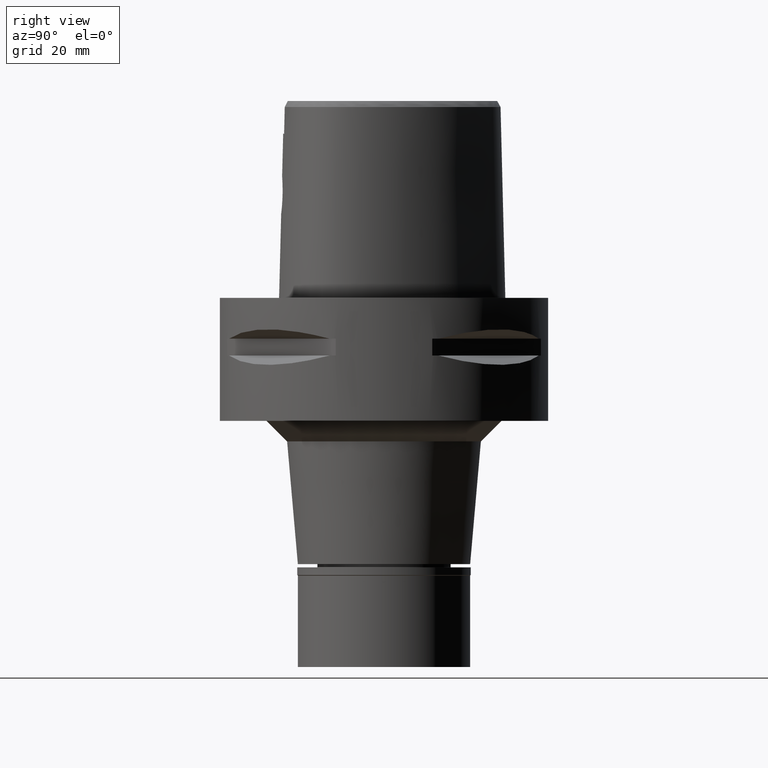
[diagram: clean part render]
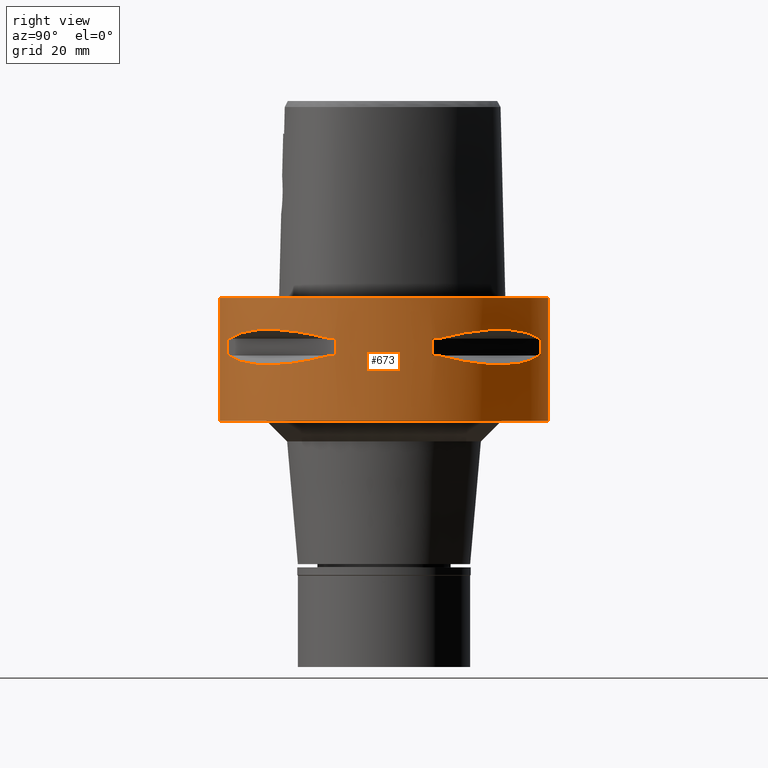
[diagram: same view with one face highlighted and labeled with its STEP entity id]
A machine part, right view. The second image highlights one B-rep face of the part: STEP entity #673.
In plain terms, the highlighted cylindrical surface (partial cylindrical patch) has radius 40 mm, axis along (0, 0, -1).
Its self-contained STEP definition (entity closure, byte-faithful):
#31 = ORIENTED_EDGE ( 'NONE', *, *, #4713, .T. ) ;
#59 = DIRECTION ( 'NONE',  ( 0.9436555409818374596, 0.3309293277639132058, 0.0000000000000000000 ) ) ;
#70 = CARTESIAN_POINT ( 'NONE',  ( 23.95303639242650817, -32.16767032367170742, -16.14729882780797254 ) ) ;
#94 = CARTESIAN_POINT ( 'NONE',  ( 22.55421454656422853, 33.03835700910543949, -15.93168855142912044 ) ) ;
#95 = CARTESIAN_POINT ( 'NONE',  ( 33.71529052282352978, -21.52391145898905833, -15.78742602700000930 ) ) ;
#142 = CARTESIAN_POINT ( 'NONE',  ( 21.40429668490344994, -33.79139713908569576, -15.76966389594736029 ) ) ;
#197 = EDGE_CURVE ( 'NONE', #3501, #4285, #1095, .T. ) ;
#198 = CARTESIAN_POINT ( 'NONE',  ( 18.89342208871622120, 35.39137327286633194, -15.39779115588365599 ) ) ;
#204 = DIRECTION ( 'NONE',  ( 0.0000000000000000000, 1.000000000000000000, 0.0000000000000000000 ) ) ;
#209 = CARTESIAN_POINT ( 'NONE',  ( 0.0000000000000000000, 1.275163479612000028E-14, -9.950000000000001066 ) ) ;
#232 = DIRECTION ( 'NONE',  ( 0.9558028356769561196, -0.2940084000702865574, 0.0000000000000000000 ) ) ;
#247 = EDGE_CURVE ( 'NONE', #3501, #4029, #2571, .T. ) ;
#255 = ORIENTED_EDGE ( 'NONE', *, *, #3157, .T. ) ;
#267 = CARTESIAN_POINT ( 'NONE',  ( 23.88364259926272481, 32.22570670466008380, -7.859869859733158215 ) ) ;
#277 = DIRECTION ( 'NONE',  ( 0.0000000000000000000, -1.000000000000000000, 0.0000000000000000000 ) ) ;
#283 = ORIENTED_EDGE ( 'NONE', *, *, #1837, .F. ) ;
#333 = DIRECTION ( 'NONE',  ( 0.0000000000000000000, 0.0000000000000000000, 1.000000000000000000 ) ) ;
#361 = EDGE_CURVE ( 'NONE', #4268, #2239, #3791, .T. ) ;
#363 = CIRCLE ( 'NONE', #2567, 40.00000000000000000 ) ;
#392 = CARTESIAN_POINT ( 'NONE',  ( 36.35358138589327126, 16.81132763100201544, -14.94059947015120926 ) ) ;
#405 = DIRECTION ( 'NONE',  ( 0.0000000000000000000, 0.0000000000000000000, 1.000000000000000000 ) ) ;
#413 = VECTOR ( 'NONE', #2186, 1000.000000000000000 ) ;
#438 = CARTESIAN_POINT ( 'NONE',  ( 33.79139713908592313, 21.40429668490280335, -15.76966389594719864 ) ) ;
#444 = CARTESIAN_POINT ( 'NONE',  ( 38.23211342708000160, 11.76033600280999991, -9.950000000000001066 ) ) ;
#465 = VERTEX_POINT ( 'NONE', #1439 ) ;
#500 = AXIS2_PLACEMENT_3D ( 'NONE', #3363, #1425, #4500 ) ;
#504 = VERTEX_POINT ( 'NONE', #4286 ) ;
#519 = CARTESIAN_POINT ( 'NONE',  ( 16.81132763102019467, -36.35358138588690480, -14.94059947015603029 ) ) ;
#548 = CARTESIAN_POINT ( 'NONE',  ( 0.0000000000000000000, -40.00000000000000000, 0.0000000000000000000 ) ) ;
#562 = CARTESIAN_POINT ( 'NONE',  ( 21.20128033779976207, -33.91944728533264453, -15.73905907260502168 ) ) ;
#574 = EDGE_LOOP ( 'NONE', ( #990, #2090, #1836, #4426 ) ) ;
#606 = CARTESIAN_POINT ( 'NONE',  ( 37.74622163926999718, -13.23717311056000057, -9.950000000002001244 ) ) ;
#613 = CARTESIAN_POINT ( 'NONE',  ( 0.0000000000000000000, 40.00000000000000000, -30.00000000000000000 ) ) ;
#618 = B_SPLINE_CURVE_WITH_KNOTS ( 'NONE', 3,
 ( #1413, #1899, #4998, #3080, #1849, #2263, #2565, #4614, #3738, #4129 ),
 .UNSPECIFIED., .F., .F.,
 ( 4, 2, 2, 2, 4 ),
 ( 0.0000000000000000000, 0.2500000000000000000, 0.5000000000000000000, 0.7500000000000000000, 1.000000000000000000 ),
 .UNSPECIFIED. ) ;
#619 = DIRECTION ( 'NONE',  ( 0.2940084000702865574, 0.9558028356769561196, 0.0000000000000000000 ) ) ;
#661 = CARTESIAN_POINT ( 'NONE',  ( 0.0000000000000000000, 1.275163479612000028E-14, -30.00000000000000000 ) ) ;
#673 = ADVANCED_FACE ( 'NONE', ( #3693, #4547, #4880 ), #2956, .T. ) ;
#686 = CARTESIAN_POINT ( 'NONE',  ( 38.23211342708000160, -11.76033600280999991, -9.950000000000001066 ) ) ;
#716 = VERTEX_POINT ( 'NONE', #1269 ) ;
#725 = CARTESIAN_POINT ( 'NONE',  ( 0.0000000000000000000, 1.275163479612000028E-14, -9.950000000000001066 ) ) ;
#741 = CIRCLE ( 'NONE', #2714, 39.99999999999999289 ) ;
#757 = VERTEX_POINT ( 'NONE', #4794 ) ;
#776 = CARTESIAN_POINT ( 'NONE',  ( 30.34851826271004782, 26.21995747454793602, -16.33009976521915263 ) ) ;
#780 = CARTESIAN_POINT ( 'NONE',  ( 35.41596287858687475, 18.83173199168491507, -8.619939612229350345 ) ) ;
#793 = EDGE_CURVE ( 'NONE', #3249, #3082, #3211, .T. ) ;
#807 = B_SPLINE_CURVE_WITH_KNOTS ( 'NONE', 3,
 ( #1065, #1887, #780, #3037, #4243, #3781, #267, #3496, #1839, #3893 ),
 .UNSPECIFIED., .F., .F.,
 ( 4, 2, 2, 2, 4 ),
 ( 0.0000000000000000000, 0.2499999999999997780, 0.4999999999999995559, 0.7499999999999997780, 1.000000000000000000 ),
 .UNSPECIFIED. ) ;
#845 = CARTESIAN_POINT ( 'NONE',  ( 37.74622163926999718, 13.23717311056000057, -14.05000000000000071 ) ) ;
#846 = DIRECTION ( 'NONE',  ( 0.0000000000000000000, 0.0000000000000000000, 1.000000000000000000 ) ) ;
#926 = CARTESIAN_POINT ( 'NONE',  ( 20.34261333235769342, -34.44518065739997326, -15.60313948594185263 ) ) ;
#938 = AXIS2_PLACEMENT_3D ( 'NONE', #4183, #4520, #4135 ) ;
#955 = EDGE_CURVE ( 'NONE', #4606, #2755, #4784, .T. ) ;
#990 = ORIENTED_EDGE ( 'NONE', *, *, #1052, .T. ) ;
#1020 = AXIS2_PLACEMENT_3D ( 'NONE', #2168, #3720, #204 ) ;
#1052 = EDGE_CURVE ( 'NONE', #1465, #3949, #1107, .T. ) ;
#1065 = CARTESIAN_POINT ( 'NONE',  ( 37.74622163926999718, 13.23717311056000057, -9.950000000002001244 ) ) ;
#1095 = LINE ( 'NONE', #1915, #4380 ) ;
#1107 = CIRCLE ( 'NONE', #1020, 40.00000000000000000 ) ;
#1142 = ORIENTED_EDGE ( 'NONE', *, *, #3545, .T. ) ;
#1173 = CARTESIAN_POINT ( 'NONE',  ( 33.91944728533342612, 21.20128033779756294, -15.73905907260444614 ) ) ;
#1243 = CARTESIAN_POINT ( 'NONE',  ( 0.0000000000000000000, -40.00000000000000000, 0.0000000000000000000 ) ) ;
#1266 = CARTESIAN_POINT ( 'NONE',  ( 26.21995747455854087, -30.34851826270995545, -16.33009976522343365 ) ) ;
#1268 = CARTESIAN_POINT ( 'NONE',  ( 21.75464223249177920, 33.56701934068340165, -15.82109001420614547 ) ) ;
#1269 = CARTESIAN_POINT ( 'NONE',  ( 11.76033600280999991, 38.23211342708000160, -9.950000000000001066 ) ) ;
#1291 = CARTESIAN_POINT ( 'NONE',  ( 20.91613153242540335, -34.09685321779713263, -15.69507322892989265 ) ) ;
#1335 = ORIENTED_EDGE ( 'NONE', *, *, #4802, .T. ) ;
#1396 = CARTESIAN_POINT ( 'NONE',  ( 0.0000000000000000000, 1.275163479612000028E-14, -14.05000000000000071 ) ) ;
#1407 = AXIS2_PLACEMENT_3D ( 'NONE', #209, #2196, #3750 ) ;
#1413 = CARTESIAN_POINT ( 'NONE',  ( 13.23717311056000057, -37.74622163926999718, -9.950000000002001244 ) ) ;
#1425 = DIRECTION ( 'NONE',  ( 0.0000000000000000000, 0.0000000000000000000, -1.000000000000000000 ) ) ;
#1438 = LINE ( 'NONE', #1462, #3793 ) ;
#1439 = CARTESIAN_POINT ( 'NONE',  ( 0.0000000000000000000, -40.00000000000000000, -30.00000000000000000 ) ) ;
#1461 = CARTESIAN_POINT ( 'NONE',  ( 13.23717311056000057, -37.74622163926999718, -14.05000000000000071 ) ) ;
#1462 = CARTESIAN_POINT ( 'NONE',  ( 11.76033600280999991, -38.23211342708000160, -9.950000000000001066 ) ) ;
#1465 = VERTEX_POINT ( 'NONE', #5086 ) ;
#1500 = CARTESIAN_POINT ( 'NONE',  ( 37.74622163926999718, -13.23717311056000057, -14.05000000000000071 ) ) ;
#1522 = EDGE_LOOP ( 'NONE', ( #1142, #4567, #2166, #4729, #255, #4090, #4303, #4167 ) ) ;
#1533 = DIRECTION ( 'NONE',  ( 0.0000000000000000000, 0.0000000000000000000, 1.000000000000000000 ) ) ;
#1561 = EDGE_LOOP ( 'NONE', ( #4053, #3043, #1335, #2309, #2113, #283, #31, #4673 ) ) ;
#1564 = AXIS2_PLACEMENT_3D ( 'NONE', #725, #3393, #1916 ) ;
#1573 = CARTESIAN_POINT ( 'NONE',  ( 21.50560509406271237, 33.72697758561020009, -15.78472370821742921 ) ) ;
#1578 = VERTEX_POINT ( 'NONE', #3185 ) ;
#1645 = CIRCLE ( 'NONE', #3195, 39.99999999999997868 ) ;
#1651 = CARTESIAN_POINT ( 'NONE',  ( 32.30995221951170038, -23.60097336452853867, -16.06165603927371066 ) ) ;
#1652 = CARTESIAN_POINT ( 'NONE',  ( 23.60097336452848182, 32.30995221951866370, -16.06165603927653507 ) ) ;
#1662 = B_SPLINE_CURVE_WITH_KNOTS ( 'NONE', 3,
 ( #845, #4342, #392, #3511, #4676, #2399, #1173, #3960, #438, #2797, #3210, #2427, #776, #3988, #3587, #1652, #94, #3914, #1268, #2351, #2448, #4393, #1573, #198, #1822, #1776 ),
 .UNSPECIFIED., .F., .F.,
 ( 4, 1, 1, 1, 1, 1, 1, 2, 2, 2, 1, 1, 1, 1, 1, 1, 2, 2, 4 ),
 ( 0.0000000000000000000, 0.1249999999999915345, 0.1874999999999875377, 0.2187499999999857891, 0.2343749999999851508, 0.2421874999999849842, 0.2460937499999846234, 0.2480468749999845957, 0.2499999999999845679, 0.5000000000000065503, 0.6250000000000176525, 0.6875000000000233147, 0.7187500000000262013, 0.7343750000000277556, 0.7421875000000283107, 0.7460937500000288658, 0.7480468750000289768, 0.7500000000000289768, 1.000000000000000000 ),
 .UNSPECIFIED. ) ;
#1679 = CARTESIAN_POINT ( 'NONE',  ( 19.18269457494637464, -35.11589783530138931, -15.40342377741468205 ) ) ;
#1724 = VECTOR ( 'NONE', #4040, 1000.000000000000000 ) ;
#1752 = CARTESIAN_POINT ( 'NONE',  ( 36.72682052668967856, -16.14402792114121610, -14.82054974553782500 ) ) ;
#1770 = EDGE_CURVE ( 'NONE', #465, #4216, #363, .T. ) ;
#1771 = EDGE_CURVE ( 'NONE', #1578, #2514, #618, .T. ) ;
#1776 = CARTESIAN_POINT ( 'NONE',  ( 13.23717311056000057, 37.74622163926999718, -14.05000000000000071 ) ) ;
#1822 = CARTESIAN_POINT ( 'NONE',  ( 16.14402792110257678, 36.72682052670324993, -14.82054974552758786 ) ) ;
#1836 = ORIENTED_EDGE ( 'NONE', *, *, #1770, .T. ) ;
#1837 = EDGE_CURVE ( 'NONE', #504, #3698, #1438, .T. ) ;
#1839 = CARTESIAN_POINT ( 'NONE',  ( 16.10442380453151401, 36.74070924255632775, -9.189948522856571600 ) ) ;
#1849 = CARTESIAN_POINT ( 'NONE',  ( 26.20795918965211158, -30.36058330527167115, -7.669882118573494445 ) ) ;
#1860 = CARTESIAN_POINT ( 'NONE',  ( 14.69039122919157769, -37.23659447744481099, -14.43521939501259155 ) ) ;
#1887 = CARTESIAN_POINT ( 'NONE',  ( 36.74073341983645236, 16.10435486224558943, -9.189966798093664124 ) ) ;
#1899 = CARTESIAN_POINT ( 'NONE',  ( 16.10435486228985980, -36.74073341982089147, -9.189966798081966814 ) ) ;
#1915 = CARTESIAN_POINT ( 'NONE',  ( 38.23211342708000160, 11.76033600280999991, -9.950000000000001066 ) ) ;
#1916 = DIRECTION ( 'NONE',  ( 0.9436555409818374596, -0.3309293277639132058, 0.0000000000000000000 ) ) ;
#1979 = CIRCLE ( 'NONE', #1407, 39.99999999999999289 ) ;
#2049 = CARTESIAN_POINT ( 'NONE',  ( 13.23717311056000057, 37.74622163926999718, -14.05000000000000071 ) ) ;
#2054 = CARTESIAN_POINT ( 'NONE',  ( 21.46607685731500936, -33.75216276490078116, -15.77886817953053722 ) ) ;
#2090 = ORIENTED_EDGE ( 'NONE', *, *, #3798, .T. ) ;
#2113 = ORIENTED_EDGE ( 'NONE', *, *, #4805, .T. ) ;
#2129 = CARTESIAN_POINT ( 'NONE',  ( 35.39137327285275347, -18.89342208875486051, -15.39779115589389313 ) ) ;
#2136 = LINE ( 'NONE', #548, #1724 ) ;
#2166 = ORIENTED_EDGE ( 'NONE', *, *, #955, .T. ) ;
#2168 = CARTESIAN_POINT ( 'NONE',  ( 0.0000000000000000000, 1.275163479612000028E-14, 0.0000000000000000000 ) ) ;
#2186 = DIRECTION ( 'NONE',  ( 0.0000000000000000000, 0.0000000000000000000, -1.000000000000000000 ) ) ;
#2196 = DIRECTION ( 'NONE',  ( 0.0000000000000000000, 0.0000000000000000000, 1.000000000000000000 ) ) ;
#2239 = VERTEX_POINT ( 'NONE', #1500 ) ;
#2262 = CARTESIAN_POINT ( 'NONE',  ( 38.23211342708000160, 11.76033600280999991, -14.05000000000000071 ) ) ;
#2263 = CARTESIAN_POINT ( 'NONE',  ( 30.36058330527161075, -26.20795918965218618, -7.669863843587146235 ) ) ;
#2303 = AXIS2_PLACEMENT_3D ( 'NONE', #4733, #3578, #59 ) ;
#2309 = ORIENTED_EDGE ( 'NONE', *, *, #361, .F. ) ;
#2314 = CIRCLE ( 'NONE', #500, 39.99999999999997868 ) ;
#2351 = CARTESIAN_POINT ( 'NONE',  ( 21.62017158009643936, 33.65365962422873736, -15.80156334789086969 ) ) ;
#2380 = CARTESIAN_POINT ( 'NONE',  ( 11.76033600280999991, -38.23211342708000160, -14.05000000000000071 ) ) ;
#2399 = CARTESIAN_POINT ( 'NONE',  ( 34.09685321779859635, 20.91613153242112588, -15.69507322892875756 ) ) ;
#2424 = VECTOR ( 'NONE', #846, 1000.000000000000000 ) ;
#2427 = CARTESIAN_POINT ( 'NONE',  ( 32.16767032370579216, 23.95303639238192162, -16.14729882780368442 ) ) ;
#2428 = CARTESIAN_POINT ( 'NONE',  ( 38.23211342708000160, -11.76033600280999991, -14.05000000000000071 ) ) ;
#2448 = CARTESIAN_POINT ( 'NONE',  ( 21.56243030661629945, 33.69065616467204194, -15.79309434609245422 ) ) ;
#2452 = DIRECTION ( 'NONE',  ( 0.3309293277639132058, 0.9436555409818374596, 0.0000000000000000000 ) ) ;
#2455 = CARTESIAN_POINT ( 'NONE',  ( 11.76033600280999991, 38.23211342708000160, -14.05000000000000071 ) ) ;
#2471 = CARTESIAN_POINT ( 'NONE',  ( 33.69065616467173641, -21.56243030661631366, -15.79309434609233165 ) ) ;
#2514 = VERTEX_POINT ( 'NONE', #606 ) ;
#2565 = CARTESIAN_POINT ( 'NONE',  ( 32.22570670470193477, -23.88364259920623667, -7.859869859750699739 ) ) ;
#2567 = AXIS2_PLACEMENT_3D ( 'NONE', #661, #333, #277 ) ;
#2571 = CIRCLE ( 'NONE', #3794, 39.99999999999999289 ) ;
#2577 = AXIS2_PLACEMENT_3D ( 'NONE', #1396, #4977, #619 ) ;
#2714 = AXIS2_PLACEMENT_3D ( 'NONE', #4906, #2935, #232 ) ;
#2755 = VERTEX_POINT ( 'NONE', #2049 ) ;
#2797 = CARTESIAN_POINT ( 'NONE',  ( 33.76566745675005166, 21.44484052678286190, -15.77571175125576808 ) ) ;
#2849 = CARTESIAN_POINT ( 'NONE',  ( 21.44484052678318164, -33.76566745674993797, -15.77571175125586045 ) ) ;
#2863 = CIRCLE ( 'NONE', #2303, 39.99999999999997868 ) ;
#2935 = DIRECTION ( 'NONE',  ( 0.0000000000000000000, 0.0000000000000000000, -1.000000000000000000 ) ) ;
#2956 = CYLINDRICAL_SURFACE ( 'NONE', #938, 40.00000000000000000 ) ;
#3037 = CARTESIAN_POINT ( 'NONE',  ( 32.22577213862145840, 23.88355431031446230, -7.859897272588790784 ) ) ;
#3043 = ORIENTED_EDGE ( 'NONE', *, *, #793, .F. ) ;
#3080 = CARTESIAN_POINT ( 'NONE',  ( 23.88355431037091137, -32.22577213857957901, -7.859897272571249260 ) ) ;
#3082 = VERTEX_POINT ( 'NONE', #686 ) ;
#3091 = EDGE_CURVE ( 'NONE', #4606, #716, #3924, .T. ) ;
#3096 = DIRECTION ( 'NONE',  ( 0.0000000000000000000, 0.0000000000000000000, -1.000000000000000000 ) ) ;
#3157 = EDGE_CURVE ( 'NONE', #757, #4285, #2863, .T. ) ;
#3185 = CARTESIAN_POINT ( 'NONE',  ( 13.23717311056000057, -37.74622163926999718, -9.950000000002001244 ) ) ;
#3195 = AXIS2_PLACEMENT_3D ( 'NONE', #3619, #4350, #2452 ) ;
#3208 = CARTESIAN_POINT ( 'NONE',  ( 33.03835700910137518, -22.55421454656427116, -15.93168855142748974 ) ) ;
#3210 = CARTESIAN_POINT ( 'NONE',  ( 33.75216276490053247, 21.46607685731535753, -15.77886817953057630 ) ) ;
#3211 = LINE ( 'NONE', #2428, #2424 ) ;
#3249 = VERTEX_POINT ( 'NONE', #4962 ) ;
#3253 = CARTESIAN_POINT ( 'NONE',  ( 33.39247868354687654, -22.02254759438256215, -15.85920599531173281 ) ) ;
#3363 = CARTESIAN_POINT ( 'NONE',  ( 0.0000000000000000000, 1.275163479612000028E-14, -14.05000000000000071 ) ) ;
#3393 = DIRECTION ( 'NONE',  ( 0.0000000000000000000, 0.0000000000000000000, 1.000000000000000000 ) ) ;
#3399 = LINE ( 'NONE', #4198, #413 ) ;
#3413 = EDGE_CURVE ( 'NONE', #4029, #3838, #807, .T. ) ;
#3414 = EDGE_CURVE ( 'NONE', #2514, #3082, #3676, .T. ) ;
#3442 = CARTESIAN_POINT ( 'NONE',  ( 0.0000000000000000000, 1.275163479612000028E-14, -9.950000000000001066 ) ) ;
#3496 = CARTESIAN_POINT ( 'NONE',  ( 18.83182902082666743, 35.41591128510520292, -8.619912199373716888 ) ) ;
#3501 = VERTEX_POINT ( 'NONE', #444 ) ;
#3511 = CARTESIAN_POINT ( 'NONE',  ( 35.11589783530614284, 19.18269457493275354, -15.40342377741106539 ) ) ;
#3530 = CARTESIAN_POINT ( 'NONE',  ( 11.76033600280999991, 38.23211342708000160, -14.05000000000000071 ) ) ;
#3545 = EDGE_CURVE ( 'NONE', #3838, #716, #1645, .T. ) ;
#3578 = DIRECTION ( 'NONE',  ( 0.0000000000000000000, 0.0000000000000000000, -1.000000000000000000 ) ) ;
#3586 = CARTESIAN_POINT ( 'NONE',  ( 33.72697758561031378, -21.50560509406240328, -15.78472370821734216 ) ) ;
#3587 = CARTESIAN_POINT ( 'NONE',  ( 25.62819065486032599, 30.77249687754699181, -16.26160051742884249 ) ) ;
#3619 = CARTESIAN_POINT ( 'NONE',  ( 0.0000000000000000000, 1.275163479612000028E-14, -9.950000000000001066 ) ) ;
#3676 = CIRCLE ( 'NONE', #1564, 39.99999999999997868 ) ;
#3685 = CARTESIAN_POINT ( 'NONE',  ( 30.77249687753770857, -25.62819065486041481, -16.26160051742509793 ) ) ;
#3693 = FACE_OUTER_BOUND ( 'NONE', #574, .T. ) ;
#3698 = VERTEX_POINT ( 'NONE', #2380 ) ;
#3720 = DIRECTION ( 'NONE',  ( 0.0000000000000000000, 0.0000000000000000000, -1.000000000000000000 ) ) ;
#3738 = CARTESIAN_POINT ( 'NONE',  ( 36.74070924257181758, -16.10442380448734312, -9.189948522868267133 ) ) ;
#3750 = DIRECTION ( 'NONE',  ( 0.2940084000702865574, -0.9558028356769561196, 0.0000000000000000000 ) ) ;
#3781 = CARTESIAN_POINT ( 'NONE',  ( 26.20795918968520866, 30.36058330523860960, -7.669863843575448925 ) ) ;
#3791 = B_SPLINE_CURVE_WITH_KNOTS ( 'NONE', 3,
 ( #3812, #1860, #519, #1679, #926, #1291, #562, #4057, #142, #2849, #2054, #70, #1266, #4874, #3685, #1651, #3208, #3253, #4104, #4414, #2471, #95, #3586, #2129, #1752, #4035 ),
 .UNSPECIFIED., .F., .F.,
 ( 4, 1, 1, 1, 1, 1, 1, 2, 2, 2, 1, 1, 1, 1, 1, 1, 2, 2, 4 ),
 ( 0.0000000000000000000, 0.1249999999999973355, 0.1874999999999962530, 0.2187499999999958367, 0.2343749999999957534, 0.2421874999999955591, 0.2460937499999953648, 0.2480468749999952260, 0.2499999999999951150, 0.4999999999999993339, 0.6250000000000015543, 0.6875000000000027756, 0.7187500000000034417, 0.7343750000000038858, 0.7421875000000039968, 0.7460937500000038858, 0.7480468750000038858, 0.7500000000000039968, 1.000000000000000000 ),
 .UNSPECIFIED. ) ;
#3793 = VECTOR ( 'NONE', #4585, 1000.000000000000000 ) ;
#3794 = AXIS2_PLACEMENT_3D ( 'NONE', #3442, #1533, #5015 ) ;
#3798 = EDGE_CURVE ( 'NONE', #3949, #465, #2136, .T. ) ;
#3812 = CARTESIAN_POINT ( 'NONE',  ( 13.23717311056000057, -37.74622163926999718, -14.05000000000000071 ) ) ;
#3838 = VERTEX_POINT ( 'NONE', #4062 ) ;
#3893 = CARTESIAN_POINT ( 'NONE',  ( 13.23717311056000057, 37.74622163926999718, -9.950000000002001244 ) ) ;
#3914 = CARTESIAN_POINT ( 'NONE',  ( 22.02254759438254084, 33.39247868354903659, -15.85920599531261210 ) ) ;
#3924 = LINE ( 'NONE', #3530, #4506 ) ;
#3949 = VERTEX_POINT ( 'NONE', #1243 ) ;
#3960 = CARTESIAN_POINT ( 'NONE',  ( 33.82993376593504564, 21.34345216682095625, -15.76055673748757613 ) ) ;
#3988 = CARTESIAN_POINT ( 'NONE',  ( 27.25214773983623928, 29.31642813391731295, -16.33014064577227487 ) ) ;
#4029 = VERTEX_POINT ( 'NONE', #4722 ) ;
#4035 = CARTESIAN_POINT ( 'NONE',  ( 37.74622163926999718, -13.23717311056000057, -14.05000000000000071 ) ) ;
#4040 = DIRECTION ( 'NONE',  ( 0.0000000000000000000, 0.0000000000000000000, -1.000000000000000000 ) ) ;
#4053 = ORIENTED_EDGE ( 'NONE', *, *, #3414, .T. ) ;
#4057 = CARTESIAN_POINT ( 'NONE',  ( 21.34345216682207891, -33.82993376593465484, -15.76055673748786745 ) ) ;
#4062 = CARTESIAN_POINT ( 'NONE',  ( 13.23717311056000057, 37.74622163926999718, -9.950000000002001244 ) ) ;
#4090 = ORIENTED_EDGE ( 'NONE', *, *, #197, .F. ) ;
#4104 = CARTESIAN_POINT ( 'NONE',  ( 33.56701934068230031, -21.75464223249180407, -15.82109001420569250 ) ) ;
#4112 = EDGE_CURVE ( 'NONE', #757, #2755, #1662, .T. ) ;
#4129 = CARTESIAN_POINT ( 'NONE',  ( 37.74622163926999718, -13.23717311056000057, -9.950000000002001244 ) ) ;
#4135 = DIRECTION ( 'NONE',  ( 0.0000000000000000000, -1.000000000000000000, 0.0000000000000000000 ) ) ;
#4167 = ORIENTED_EDGE ( 'NONE', *, *, #3413, .T. ) ;
#4183 = CARTESIAN_POINT ( 'NONE',  ( 0.0000000000000000000, 1.275163479612000028E-14, 4.125000000000000000 ) ) ;
#4198 = CARTESIAN_POINT ( 'NONE',  ( 0.0000000000000000000, 40.00000000000000000, 0.0000000000000000000 ) ) ;
#4216 = VERTEX_POINT ( 'NONE', #613 ) ;
#4239 = EDGE_CURVE ( 'NONE', #1465, #4216, #3399, .T. ) ;
#4243 = CARTESIAN_POINT ( 'NONE',  ( 30.36058330523851367, 26.20795918968530813, -7.669882118585187314 ) ) ;
#4268 = VERTEX_POINT ( 'NONE', #1461 ) ;
#4285 = VERTEX_POINT ( 'NONE', #2262 ) ;
#4286 = CARTESIAN_POINT ( 'NONE',  ( 11.76033600280999991, -38.23211342708000160, -9.950000000000001066 ) ) ;
#4303 = ORIENTED_EDGE ( 'NONE', *, *, #247, .T. ) ;
#4342 = CARTESIAN_POINT ( 'NONE',  ( 37.23659447744845608, 14.69039122918119666, -14.43521939500983819 ) ) ;
#4350 = DIRECTION ( 'NONE',  ( 0.0000000000000000000, 0.0000000000000000000, 1.000000000000000000 ) ) ;
#4380 = VECTOR ( 'NONE', #3096, 1000.000000000000000 ) ;
#4393 = CARTESIAN_POINT ( 'NONE',  ( 21.52391145898906544, 33.71529052282368610, -15.78742602700007680 ) ) ;
#4414 = CARTESIAN_POINT ( 'NONE',  ( 33.65365962422818313, -21.62017158009644291, -15.80156334789064054 ) ) ;
#4426 = ORIENTED_EDGE ( 'NONE', *, *, #4239, .F. ) ;
#4500 = DIRECTION ( 'NONE',  ( 0.3309293277639132058, -0.9436555409818374596, 0.0000000000000000000 ) ) ;
#4506 = VECTOR ( 'NONE', #405, 1000.000000000000000 ) ;
#4520 = DIRECTION ( 'NONE',  ( 0.0000000000000000000, 0.0000000000000000000, -1.000000000000000000 ) ) ;
#4547 = FACE_BOUND ( 'NONE', #1561, .T. ) ;
#4567 = ORIENTED_EDGE ( 'NONE', *, *, #3091, .F. ) ;
#4585 = DIRECTION ( 'NONE',  ( 0.0000000000000000000, 0.0000000000000000000, -1.000000000000000000 ) ) ;
#4606 = VERTEX_POINT ( 'NONE', #2455 ) ;
#4614 = CARTESIAN_POINT ( 'NONE',  ( 35.41591128513823605, -18.83182902076454468, -8.619912199391260188 ) ) ;
#4673 = ORIENTED_EDGE ( 'NONE', *, *, #1771, .T. ) ;
#4676 = CARTESIAN_POINT ( 'NONE',  ( 34.44518065740277279, 20.34261333234973534, -15.60313948593975120 ) ) ;
#4713 = EDGE_CURVE ( 'NONE', #504, #1578, #1979, .T. ) ;
#4722 = CARTESIAN_POINT ( 'NONE',  ( 37.74622163926999718, 13.23717311056000057, -9.950000000002001244 ) ) ;
#4729 = ORIENTED_EDGE ( 'NONE', *, *, #4112, .F. ) ;
#4733 = CARTESIAN_POINT ( 'NONE',  ( 0.0000000000000000000, 1.275163479612000028E-14, -14.05000000000000071 ) ) ;
#4784 = CIRCLE ( 'NONE', #2577, 39.99999999999999289 ) ;
#4794 = CARTESIAN_POINT ( 'NONE',  ( 37.74622163926999718, 13.23717311056000057, -14.05000000000000071 ) ) ;
#4802 = EDGE_CURVE ( 'NONE', #3249, #2239, #741, .T. ) ;
#4805 = EDGE_CURVE ( 'NONE', #4268, #3698, #2314, .T. ) ;
#4874 = CARTESIAN_POINT ( 'NONE',  ( 29.31642813391201585, -27.25214773983627836, -16.33014064577013258 ) ) ;
#4880 = FACE_BOUND ( 'NONE', #1522, .T. ) ;
#4906 = CARTESIAN_POINT ( 'NONE',  ( 0.0000000000000000000, 1.275163479612000028E-14, -14.05000000000000071 ) ) ;
#4962 = CARTESIAN_POINT ( 'NONE',  ( 38.23211342708000160, -11.76033600280999991, -14.05000000000000071 ) ) ;
#4977 = DIRECTION ( 'NONE',  ( 0.0000000000000000000, 0.0000000000000000000, -1.000000000000000000 ) ) ;
#4998 = CARTESIAN_POINT ( 'NONE',  ( 18.83173199174709467, -35.41596287855377767, -8.619939612211810598 ) ) ;
#5015 = DIRECTION ( 'NONE',  ( 0.9558028356769561196, 0.2940084000702865574, 0.0000000000000000000 ) ) ;
#5086 = CARTESIAN_POINT ( 'NONE',  ( 0.0000000000000000000, 40.00000000000000000, 0.0000000000000000000 ) ) ;